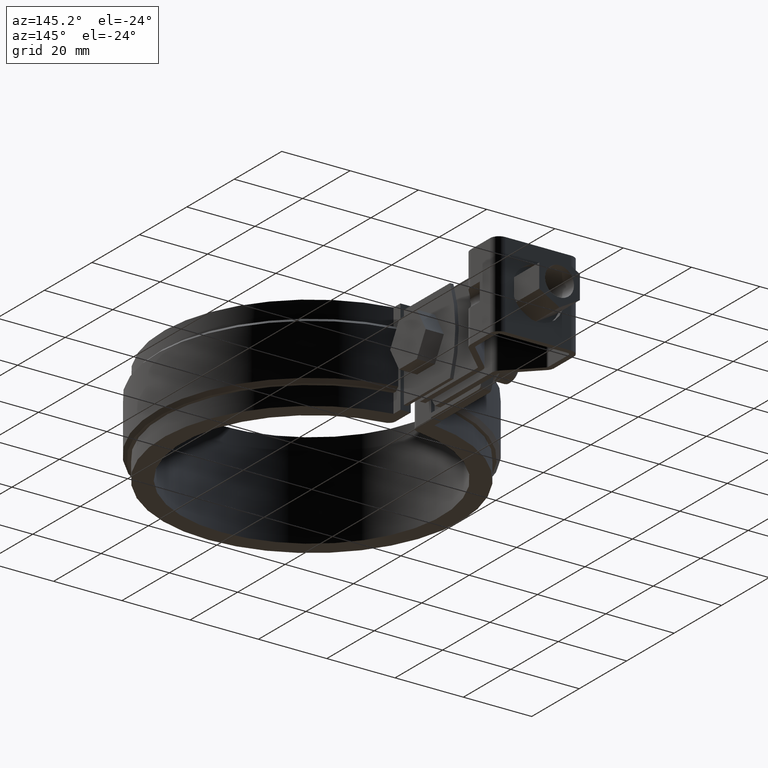
[diagram: clean part render]
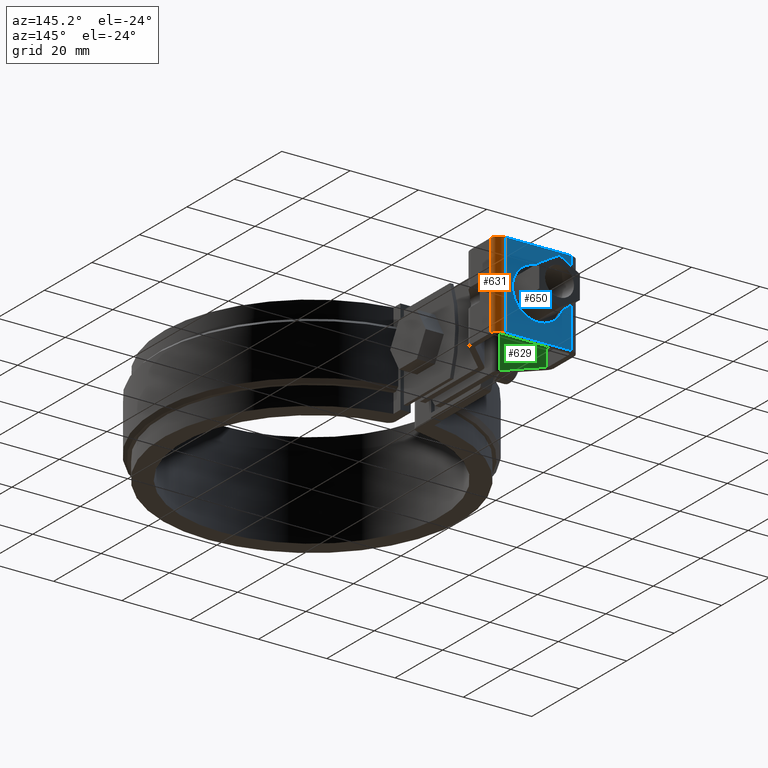
[diagram: same view with three faces highlighted in distinct colors, each labeled with its STEP entity id]
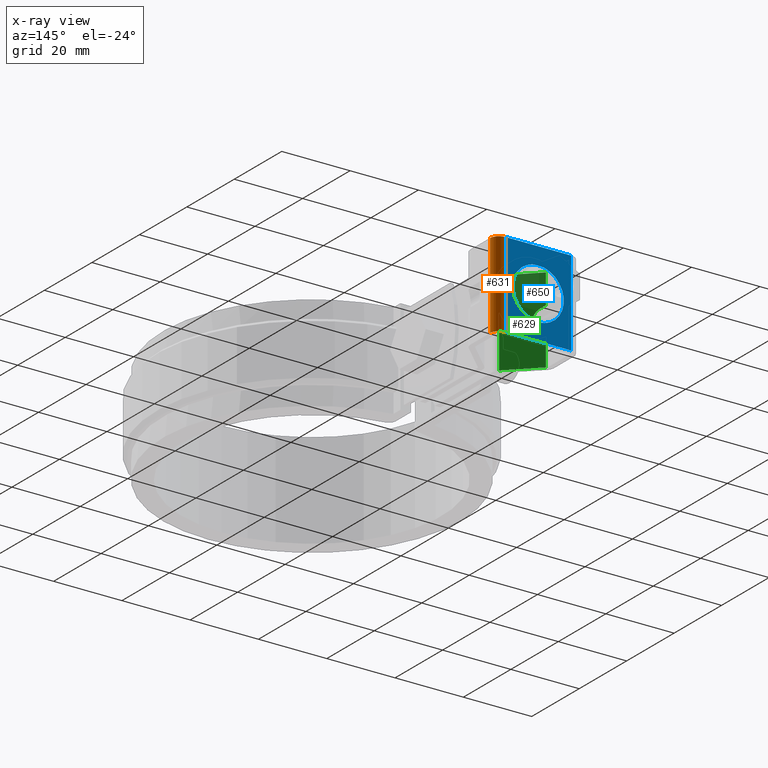
[diagram: x-ray of the same camera — body ghosted, the three highlighted faces saturated]
A machine part, auxiliary view with three faces highlighted in distinct colors.
The next image is the same camera in x-ray (body ghosted, the three faces saturated) — at least one of them is partly hidden behind the body in this view.
Their STEP definitions:

[orange] entity #631 — the highlighted cylindrical surface (edge-blend (fillet) strip) has radius 2.6 mm, axis along (-0, -0, 1).
#631 = ADVANCED_FACE( '', ( #1177 ), #1178, .T. );
#1177 = FACE_OUTER_BOUND( '', #2485, .T. );
#1178 = CYLINDRICAL_SURFACE( '', #2486, 2.60000000000000 );
#2485 = EDGE_LOOP( '', ( #5740, #5741, #5742, #5743 ) );
#2486 = AXIS2_PLACEMENT_3D( '', #5744, #5745, #5746 );
#5740 = ORIENTED_EDGE( '', *, *, #7804, .T. );
#5741 = ORIENTED_EDGE( '', *, *, #7805, .F. );
#5742 = ORIENTED_EDGE( '', *, *, #7725, .F. );
#5743 = ORIENTED_EDGE( '', *, *, #7759, .T. );
#5744 = CARTESIAN_POINT( '', ( 9.65000000000284, 92.7951037457394, 12.5000000000042 ) );
#5745 = DIRECTION( '', ( -3.05802634389892E-014, -2.84772205816503E-014, 1.00000000000000 ) );
#5746 = DIRECTION( '', ( 2.88174354412544E-015, 1.00000000000000, 2.84772205816504E-014 ) );
#7725 = EDGE_CURVE( '', #9034, #9036, #9037, .F. );
#7759 = EDGE_CURVE( '', #9034, #9094, #9096, .T. );
#7804 = EDGE_CURVE( '', #9094, #9169, #9170, .F. );
#7805 = EDGE_CURVE( '', #9036, #9169, #9171, .T. );
#9034 = VERTEX_POINT( '', #12887 );
#9036 = VERTEX_POINT( '', #12890 );
#9037 = CIRCLE( '', #12891, 2.60000000000000 );
#9094 = VERTEX_POINT( '', #12993 );
#9096 = LINE( '', #12996, #12997 );
#9169 = VERTEX_POINT( '', #13106 );
#9170 = CIRCLE( '', #13107, 2.60000000000000 );
#9171 = LINE( '', #13108, #13109 );
#12887 = CARTESIAN_POINT( '', ( 12.2500000000028, 92.7951037457394, 12.5000000000043 ) );
#12890 = CARTESIAN_POINT( '', ( 9.65000000000284, 95.3951037457393, 12.5000000000043 ) );
#12891 = AXIS2_PLACEMENT_3D( '', #14783, #14784, #14785 );
#12993 = CARTESIAN_POINT( '', ( 12.2500000000032, 92.7951037457401, -12.4999999999957 ) );
#12996 = CARTESIAN_POINT( '', ( 12.2500000000028, 92.7951037457394, 12.5000000000043 ) );
#12997 = VECTOR( '', #14833, 1000.00000000000 );
#13106 = CARTESIAN_POINT( '', ( 9.65000000000360, 95.3951037457400, -12.4999999999957 ) );
#13107 = AXIS2_PLACEMENT_3D( '', #14908, #14909, #14910 );
#13108 = CARTESIAN_POINT( '', ( 9.65000000000284, 95.3951037457394, 12.5000000000043 ) );
#13109 = VECTOR( '', #14911, 1000.00000000000 );
#14783 = CARTESIAN_POINT( '', ( 9.65000000000284, 92.7951037457394, 12.5000000000042 ) );
#14784 = DIRECTION( '', ( 3.05802634389892E-014, 2.84772205816503E-014, -1.00000000000000 ) );
#14785 = DIRECTION( '', ( -1.00000000000000, 0.000000000000000, -3.05802634389892E-014 ) );
#14833 = DIRECTION( '', ( 3.05802634389892E-014, 2.84772205816503E-014, -1.00000000000000 ) );
#14908 = CARTESIAN_POINT( '', ( 9.65000000000360, 92.7951037457401, -12.4999999999958 ) );
#14909 = DIRECTION( '', ( 3.05802634389892E-014, 2.84772205816503E-014, -1.00000000000000 ) );
#14910 = DIRECTION( '', ( -1.00000000000000, 0.000000000000000, -3.05802634389892E-014 ) );
#14911 = DIRECTION( '', ( 3.05802634389892E-014, 2.84772205816503E-014, -1.00000000000000 ) );

[blue] entity #650 — the highlighted planar face has unit normal (0, 1, 0).
#650 = ADVANCED_FACE( '', ( #1219, #1220 ), #1221, .T. );
#1219 = FACE_OUTER_BOUND( '', #2527, .T. );
#1220 = FACE_BOUND( '', #2528, .T. );
#1221 = PLANE( '', #2529 );
#2527 = EDGE_LOOP( '', ( #5907, #5908, #5909, #5910 ) );
#2528 = EDGE_LOOP( '', ( #5911 ) );
#2529 = AXIS2_PLACEMENT_3D( '', #5912, #5913, #5914 );
#5907 = ORIENTED_EDGE( '', *, *, #7726, .T. );
#5908 = ORIENTED_EDGE( '', *, *, #7805, .T. );
#5909 = ORIENTED_EDGE( '', *, *, #7811, .F. );
#5910 = ORIENTED_EDGE( '', *, *, #7767, .F. );
#5911 = ORIENTED_EDGE( '', *, *, #7819, .F. );
#5912 = CARTESIAN_POINT( '', ( -9.64999999999715, 95.3951037457391, 12.5000000000037 ) );
#5913 = DIRECTION( '', ( 2.23764624741959E-042, 1.00000000000000, 2.84772205816504E-014 ) );
#5914 = DIRECTION( '', ( 1.00000000000000, 0.000000000000000, -7.85767080394581E-029 ) );
#7726 = EDGE_CURVE( '', #9038, #9036, #9039, .F. );
#7767 = EDGE_CURVE( '', #9038, #9105, #9108, .T. );
#7805 = EDGE_CURVE( '', #9036, #9169, #9171, .T. );
#7811 = EDGE_CURVE( '', #9105, #9169, #9180, .T. );
#7819 = EDGE_CURVE( '', #9190, #9190, #9191, .T. );
#9036 = VERTEX_POINT( '', #12890 );
#9038 = VERTEX_POINT( '', #12892 );
#9039 = LINE( '', #12893, #12894 );
#9105 = VERTEX_POINT( '', #13011 );
#9108 = LINE( '', #13015, #13016 );
#9169 = VERTEX_POINT( '', #13106 );
#9171 = LINE( '', #13108, #13109 );
#9180 = LINE( '', #13121, #13122 );
#9190 = VERTEX_POINT( '', #13136 );
#9191 = CIRCLE( '', #13137, 7.50000000000000 );
#12890 = CARTESIAN_POINT( '', ( 9.65000000000284, 95.3951037457393, 12.5000000000043 ) );
#12892 = CARTESIAN_POINT( '', ( -9.64999999999715, 95.3951037457391, 12.5000000000037 ) );
#12893 = CARTESIAN_POINT( '', ( -9.64999999999715, 95.3951037457391, 12.5000000000037 ) );
#12894 = VECTOR( '', #14786, 1000.00000000000 );
#13011 = CARTESIAN_POINT( '', ( -9.64999999999639, 95.3951037457398, -12.4999999999963 ) );
#13015 = CARTESIAN_POINT( '', ( -9.64999999999715, 95.3951037457391, 12.5000000000037 ) );
#13016 = VECTOR( '', #14843, 1000.00000000000 );
#13106 = CARTESIAN_POINT( '', ( 9.65000000000360, 95.3951037457400, -12.4999999999957 ) );
#13108 = CARTESIAN_POINT( '', ( 9.65000000000284, 95.3951037457394, 12.5000000000043 ) );
#13109 = VECTOR( '', #14911, 1000.00000000000 );
#13121 = CARTESIAN_POINT( '', ( -9.64999999999639, 95.3951037457398, -12.4999999999963 ) );
#13122 = VECTOR( '', #14921, 1000.00000000000 );
#13136 = CARTESIAN_POINT( '', ( 3.24003602618713E-012, 95.3951037457393, 7.50000000000396 ) );
#13137 = AXIS2_PLACEMENT_3D( '', #14935, #14936, #14937 );
#14786 = DIRECTION( '', ( -1.00000000000000, 8.70840907397077E-028, -3.05802634389892E-014 ) );
#14843 = DIRECTION( '', ( 3.05802634389892E-014, 2.84772205816503E-014, -1.00000000000000 ) );
#14911 = DIRECTION( '', ( 3.05802634389892E-014, 2.84772205816503E-014, -1.00000000000000 ) );
#14921 = DIRECTION( '', ( 1.00000000000000, -8.70840907397077E-028, 3.05802634389892E-014 ) );
#14935 = CARTESIAN_POINT( '', ( 3.24003602618713E-012, 95.3951037457395, 3.95516924045491E-012 ) );
#14936 = DIRECTION( '', ( 2.23764624741959E-042, 1.00000000000000, 2.84772205816504E-014 ) );
#14937 = DIRECTION( '', ( 0.000000000000000, -2.84772205816504E-014, 1.00000000000000 ) );

[green] entity #629 — the highlighted planar face has unit normal (0.6983, 0.7158, 0).
#629 = ADVANCED_FACE( '', ( #1173 ), #1174, .T. );
#1173 = FACE_OUTER_BOUND( '', #2481, .T. );
#1174 = PLANE( '', #2482 );
#2481 = EDGE_LOOP( '', ( #5724, #5725, #5726, #5727, #5728, #5729 ) );
#2482 = AXIS2_PLACEMENT_3D( '', #5730, #5731, #5732 );
#5724 = ORIENTED_EDGE( '', *, *, #7708, .T. );
#5725 = ORIENTED_EDGE( '', *, *, #7787, .T. );
#5726 = ORIENTED_EDGE( '', *, *, #7800, .F. );
#5727 = ORIENTED_EDGE( '', *, *, #7797, .F. );
#5728 = ORIENTED_EDGE( '', *, *, #7796, .F. );
#5729 = ORIENTED_EDGE( '', *, *, #7801, .F. );
#5730 = CARTESIAN_POINT( '', ( -10.3483238355277, 83.7751275501107, 12.5000000000033 ) );
#5731 = DIRECTION( '', ( 0.698323835530503, 0.715781964518503, 4.17384077482085E-014 ) );
#5732 = DIRECTION( '', ( 5.97694158849678E-014, 0.000000000000000, -1.00000000000000 ) );
#7708 = EDGE_CURVE( '', #9002, #9000, #9003, .F. );
#7787 = EDGE_CURVE( '', #9000, #9139, #9142, .T. );
#7796 = EDGE_CURVE( '', #9156, #9147, #9158, .T. );
#7797 = EDGE_CURVE( '', #9147, #9159, #9160, .T. );
#7800 = EDGE_CURVE( '', #9159, #9139, #9164, .T. );
#7801 = EDGE_CURVE( '', #9002, #9156, #9165, .T. );
#9000 = VERTEX_POINT( '', #12844 );
#9002 = VERTEX_POINT( '', #12846 );
#9003 = LINE( '', #12847, #12848 );
#9139 = VERTEX_POINT( '', #13056 );
#9142 = LINE( '', #13059, #13060 );
#9147 = VERTEX_POINT( '', #13067 );
#9156 = VERTEX_POINT( '', #13083 );
#9158 = ELLIPSE( '', #13090, 5.93756228945901, 4.24999999999996 );
#9159 = VERTEX_POINT( '', #13091 );
#9160 = LINE( '', #13092, #13093 );
#9164 = LINE( '', #13098, #13099 );
#9165 = LINE( '', #13100, #13101 );
#12844 = CARTESIAN_POINT( '', ( -2.18435802761791, 75.8102832277835, 12.5000000000033 ) );
#12846 = CARTESIAN_POINT( '', ( -10.3483238355277, 83.7751275501107, 12.5000000000033 ) );
#12847 = CARTESIAN_POINT( '', ( -10.3483238355277, 83.7751275501107, 12.5000000000033 ) );
#12848 = VECTOR( '', #14752, 1000.00000000000 );
#13056 = CARTESIAN_POINT( '', ( -2.18435802761715, 75.8102832277842, -12.4999999999967 ) );
#13059 = CARTESIAN_POINT( '', ( -2.18435802761790, 75.8102832277835, 12.5000000000033 ) );
#13060 = VECTOR( '', #14883, 1000.00000000000 );
#13067 = CARTESIAN_POINT( '', ( -10.3483238355272, 83.7751275501112, -3.80080619940864 ) );
#13083 = CARTESIAN_POINT( '', ( -10.3483238355274, 83.7751275501110, 3.80080619941528 ) );
#13090 = AXIS2_PLACEMENT_3D( '', #14894, #14895, #14896 );
#13091 = CARTESIAN_POINT( '', ( -10.3483238355269, 83.7751275501114, -12.4999999999967 ) );
#13092 = CARTESIAN_POINT( '', ( -10.3483238355277, 83.7751275501107, 12.5000000000033 ) );
#13093 = VECTOR( '', #14897, 1000.00000000000 );
#13098 = CARTESIAN_POINT( '', ( -14.4991554488987, 87.8247191807707, -12.4999999999967 ) );
#13099 = VECTOR( '', #14902, 1000.00000000000 );
#13100 = CARTESIAN_POINT( '', ( -10.3483238355277, 83.7751275501107, 12.5000000000033 ) );
#13101 = VECTOR( '', #14903, 1000.00000000000 );
#14752 = DIRECTION( '', ( -0.715781964518503, 0.698323835530503, -2.00247913802682E-015 ) );
#14883 = DIRECTION( '', ( 3.05190331212981E-014, 2.85369574741963E-014, -1.00000000000000 ) );
#14894 = CARTESIAN_POINT( '', ( -12.2499999999968, 85.6304212833117, 3.31466620244618E-012 ) );
#14895 = DIRECTION( '', ( 0.698323835530503, 0.715781964518503, 4.17384077482085E-014 ) );
#14896 = DIRECTION( '', ( -0.715781964518503, 0.698323835530503, -2.00247913802671E-015 ) );
#14897 = DIRECTION( '', ( 3.05802634389892E-014, 2.84772205816503E-014, -1.00000000000000 ) );
#14902 = DIRECTION( '', ( 0.715781964518503, -0.698323835530503, 2.00247913802682E-015 ) );
#14903 = DIRECTION( '', ( 3.05802634389892E-014, 2.84772205816503E-014, -1.00000000000000 ) );